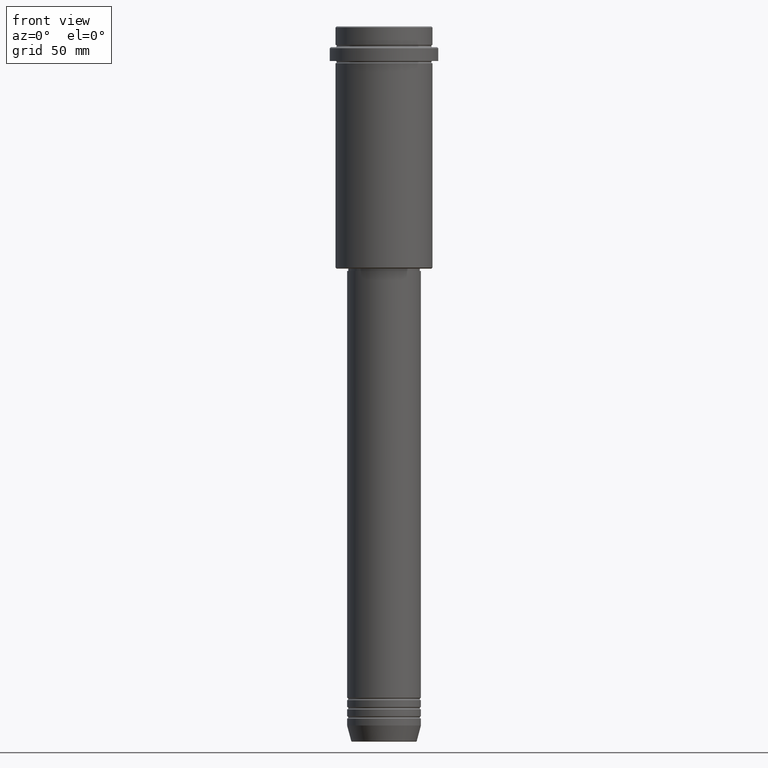
[diagram: clean part render]
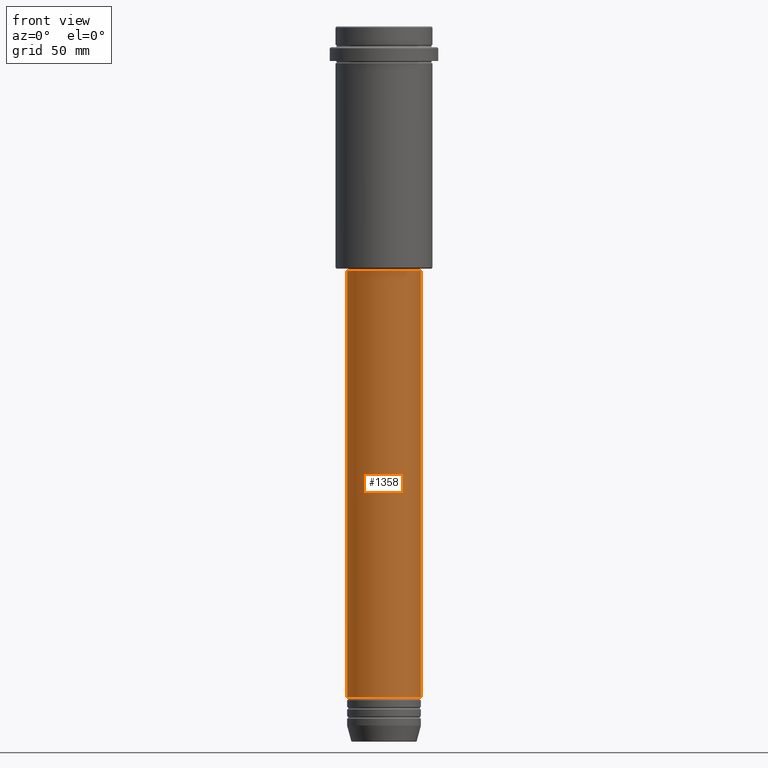
[diagram: same view with one face highlighted and labeled with its STEP entity id]
A machine part, front view. The second image highlights one B-rep face of the part: STEP entity #1358.
In plain terms, the highlighted cylindrical surface (partial cylindrical patch) has radius 16 mm, axis along (-0, -0, 1).
Its self-contained STEP definition (entity closure, byte-faithful):
#16 = AXIS2_PLACEMENT_3D ( 'NONE', #659, #1004, #135 ) ;
#36 = VERTEX_POINT ( 'NONE', #211 ) ;
#60 = CYLINDRICAL_SURFACE ( 'NONE', #1301, 16.00000000000000000 ) ;
#135 = DIRECTION ( 'NONE',  ( 1.000000000000000000, 0.000000000000000000, 0.000000000000000000 ) ) ;
#204 = DIRECTION ( 'NONE',  ( 1.000000000000000000, 0.000000000000000000, 0.000000000000000000 ) ) ;
#211 = CARTESIAN_POINT ( 'NONE',  ( -16.00000000000000000, 1.959434878635765131E-15, -290.9999999999998863 ) ) ;
#235 = EDGE_CURVE ( 'NONE', #36, #1275, #443, .T. ) ;
#268 = CARTESIAN_POINT ( 'NONE',  ( 16.00000000000000000, 0.000000000000000000, 0.000000000000000000 ) ) ;
#285 = VECTOR ( 'NONE', #1174, 1000.000000000000000 ) ;
#302 = EDGE_LOOP ( 'NONE', ( #384, #821, #1033, #1218 ) ) ;
#358 = FACE_OUTER_BOUND ( 'NONE', #302, .T. ) ;
#370 = VERTEX_POINT ( 'NONE', #1224 ) ;
#383 = LINE ( 'NONE', #268, #285 ) ;
#384 = ORIENTED_EDGE ( 'NONE', *, *, #448, .F. ) ;
#443 = CIRCLE ( 'NONE', #948, 16.00000000000000000 ) ;
#448 = EDGE_CURVE ( 'NONE', #36, #370, #1018, .T. ) ;
#473 = CARTESIAN_POINT ( 'NONE',  ( -16.00000000000000000, 1.959434878635765131E-15, 0.000000000000000000 ) ) ;
#486 = EDGE_CURVE ( 'NONE', #1275, #1263, #383, .T. ) ;
#501 = CARTESIAN_POINT ( 'NONE',  ( 16.00000000000000355, 0.000000000000000000, -105.9999999999999289 ) ) ;
#583 = DIRECTION ( 'NONE',  ( 1.000000000000000000, 0.000000000000000000, 0.000000000000000000 ) ) ;
#659 = CARTESIAN_POINT ( 'NONE',  ( 0.000000000000000000, 0.000000000000000000, -105.9999999999999289 ) ) ;
#683 = CARTESIAN_POINT ( 'NONE',  ( 0.000000000000000000, 0.000000000000000000, 0.000000000000000000 ) ) ;
#821 = ORIENTED_EDGE ( 'NONE', *, *, #235, .T. ) ;
#827 = EDGE_CURVE ( 'NONE', #370, #1263, #1299, .T. ) ;
#914 = DIRECTION ( 'NONE',  ( -0.000000000000000000, -0.000000000000000000, 1.000000000000000000 ) ) ;
#948 = AXIS2_PLACEMENT_3D ( 'NONE', #1055, #1289, #204 ) ;
#1004 = DIRECTION ( 'NONE',  ( -0.000000000000000000, -0.000000000000000000, 1.000000000000000000 ) ) ;
#1018 = LINE ( 'NONE', #473, #1333 ) ;
#1033 = ORIENTED_EDGE ( 'NONE', *, *, #486, .T. ) ;
#1055 = CARTESIAN_POINT ( 'NONE',  ( 0.000000000000000000, 0.000000000000000000, -290.9999999999998863 ) ) ;
#1152 = DIRECTION ( 'NONE',  ( -0.000000000000000000, -0.000000000000000000, 1.000000000000000000 ) ) ;
#1174 = DIRECTION ( 'NONE',  ( -0.000000000000000000, -0.000000000000000000, 1.000000000000000000 ) ) ;
#1218 = ORIENTED_EDGE ( 'NONE', *, *, #827, .F. ) ;
#1224 = CARTESIAN_POINT ( 'NONE',  ( -16.00000000000000355, 1.959434878635765526E-15, -105.9999999999999289 ) ) ;
#1263 = VERTEX_POINT ( 'NONE', #501 ) ;
#1275 = VERTEX_POINT ( 'NONE', #1389 ) ;
#1289 = DIRECTION ( 'NONE',  ( -0.000000000000000000, -0.000000000000000000, 1.000000000000000000 ) ) ;
#1299 = CIRCLE ( 'NONE', #16, 16.00000000000000355 ) ;
#1301 = AXIS2_PLACEMENT_3D ( 'NONE', #683, #1152, #583 ) ;
#1333 = VECTOR ( 'NONE', #914, 1000.000000000000000 ) ;
#1358 = ADVANCED_FACE ( 'NONE', ( #358 ), #60, .T. ) ;
#1389 = CARTESIAN_POINT ( 'NONE',  ( 16.00000000000000000, 0.000000000000000000, -290.9999999999998863 ) ) ;